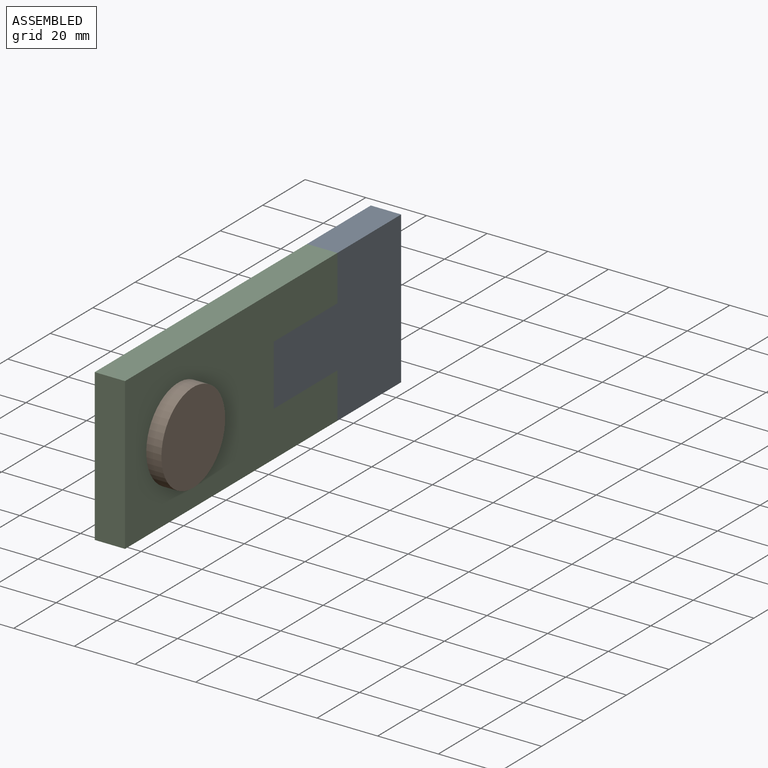
[diagram: assembled view]
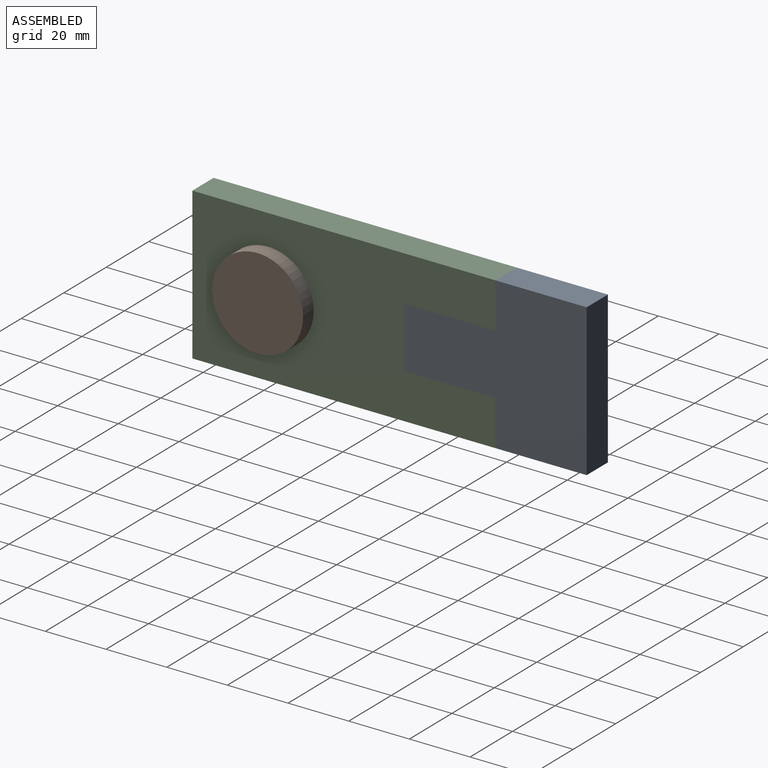
[diagram: assembled view, second angle]
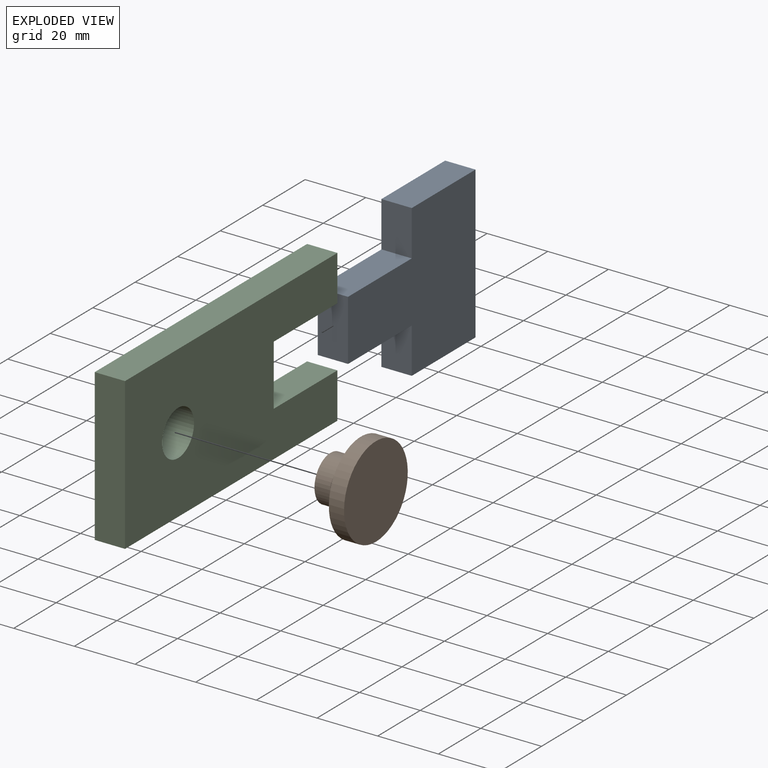
[diagram: exploded view]
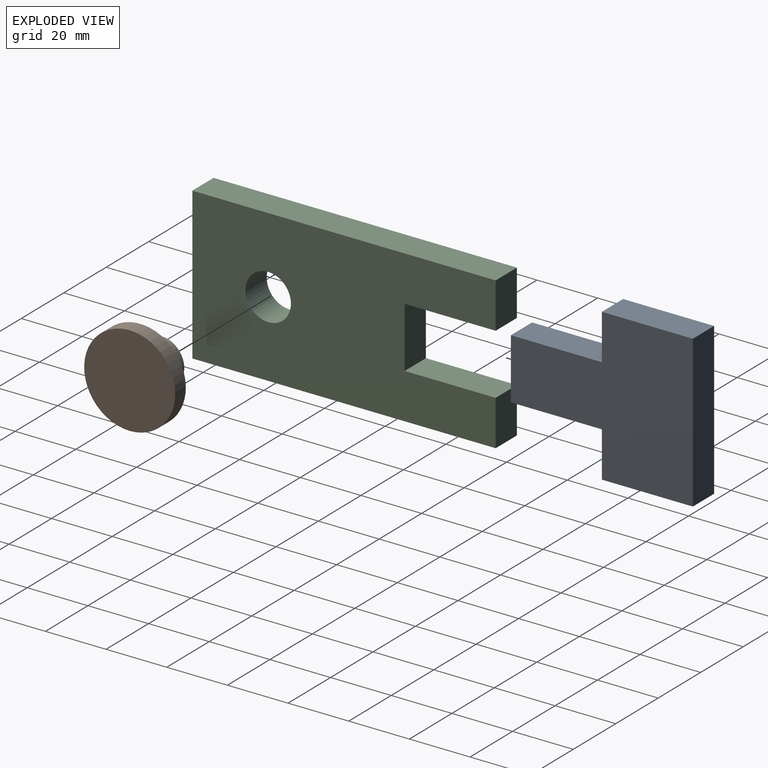
[diagram: exploded view, second angle]
ASSEMBLY  parts=3 mates=5
PART A: 10 faces, bbox 10x60x50 mm
  f0: plane 20x10mm, normal (0,-1,0), area 200mm2, adj f1,f2,f6,f8
  f1: plane 60x50mm, normal (1,0,0), area 2100mm2, adj f0,f3,f4,f5,f6,f7,f8,f9
  f2: plane 60x50mm, normal (-1,0,0), area 2100mm2, adj f0,f3,f4,f5,f6,f7,f8,f9
  f3: plane 30x10mm, normal (0,0,-1), area 300mm2, adj f1,f2,f4,f7
  f4: plane 50x10mm, normal (0,1,0), area 500mm2, adj f1,f2,f3,f5
  f5: plane 30x10mm, normal (0,0,1), area 300mm2, adj f1,f2,f4,f9
  f6: plane 30x10mm, normal (0,0,-1), area 300mm2, adj f0,f1,f2,f7
  f7: plane 15x10mm, normal (0,-1,0), area 150mm2, adj f1,f2,f3,f6
  f8: plane 30x10mm, normal (0,0,1), area 300mm2, adj f0,f1,f2,f9
  f9: plane 15x10mm, normal (0,-1,0), area 150mm2, adj f1,f2,f5,f8
PART B: 5 faces, bbox 30x30x15 mm
  f0: cylinder r=7.5mm len=15mm, axis (0,0,-1), area 471.2mm2, adj f1,f4
  f1: plane 15x15mm, normal (0,0,-1), area 176.7mm2, adj f0
  f2: cylinder r=15mm len=30mm, axis (0,0,-1), area 471.2mm2, adj f3,f4
  f3: plane 30x30mm, normal (0,0,1), area 706.9mm2, adj f2
  f4: plane 30x30mm, normal (0,0,-1), area 530.1mm2, adj f0,f2
PART C: 11 faces, bbox 10x100x50 mm
  f0: plane 15x10mm, normal (0,1,0), area 150mm2, adj f1,f2,f5,f8
  f1: plane 100x50mm, normal (1,0,0), area 4223.3mm2, adj f0,f3,f4,f5,f6,f7,f8,f9
  f2: plane 100x50mm, normal (-1,0,0), area 4223.3mm2, adj f0,f3,f4,f5,f6,f7,f8,f9
  f3: plane 100x10mm, normal (0,0,-1), area 1000mm2, adj f1,f2,f4,f6
  f4: plane 15x10mm, normal (0,1,0), area 150mm2, adj f1,f2,f3,f7
  f5: plane 100x10mm, normal (0,0,1), area 1000mm2, adj f0,f1,f2,f6
  f6: plane 50x10mm, normal (0,-1,0), area 500mm2, adj f1,f2,f3,f5
  f7: plane 30x10mm, normal (0,0,1), area 300mm2, adj f1,f2,f4,f9
  f8: plane 30x10mm, normal (0,0,-1), area 300mm2, adj f0,f1,f2,f9
  f9: plane 20x10mm, normal (0,1,0), area 200mm2, adj f1,f2,f7,f8
  f10: cylinder r=7.5mm len=15mm, axis (1,0,0), area 471.2mm2, adj f1,f2
PLACE A t=(-11.88,85.1,-17.59)mm
PLACE B rot(axis=(0,1,0),90deg) t=(-11.88,-19.9,7.41)mm
PLACE C t=(-11.88,55.1,-17.59)mm fixed
MATE planar A.f0 <-> C.f9  axis (0,-1,0) through (-6.88,25.1,7.41)mm
MATE planar B.f2 <-> C.f1  axis (-1,0,0) through (-1.88,-19.9,7.41)mm
MATE planar C.f5 <-> A.f5  axis (0,0,1) through (-1.88,5.1,32.41)mm
MATE cylindrical B.f0 <-> C.f10  axis (-1,0,0) through (-11.88,-19.9,7.41)mm
MATE planar C.f1 <-> A.f1  axis (1,0,0) through (-1.88,1.18,7.41)mm
